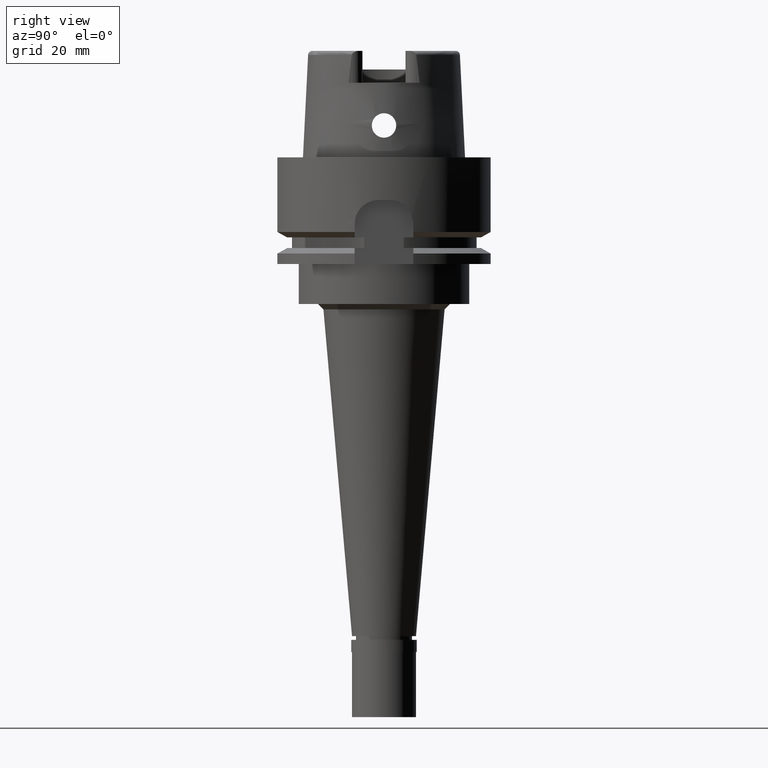
[diagram: clean part render]
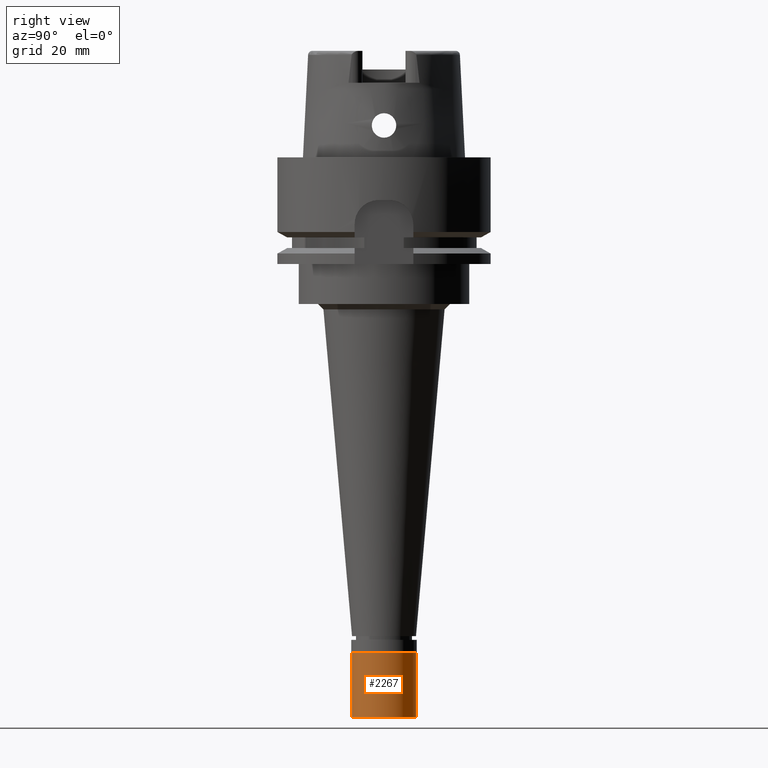
[diagram: same view with one face highlighted and labeled with its STEP entity id]
A machine part, right view. The second image highlights one B-rep face of the part: STEP entity #2267.
In plain terms, the highlighted cylindrical surface (edge-blend (fillet) strip) has radius 6 mm, axis along (0, 0, 1).
Its self-contained STEP definition (entity closure, byte-faithful):
#130 = VECTOR ( 'NONE', #911, 1000.000000000000000 ) ;
#154 = VECTOR ( 'NONE', #974, 1000.000000000000000 ) ;
#248 = DIRECTION ( 'NONE',  ( 0.0000000000000000000, -1.000000000000000000, 0.0000000000000000000 ) ) ;
#296 = CARTESIAN_POINT ( 'NONE',  ( 0.0000000000000000000, 0.0000000000000000000, -15.22500000000000142 ) ) ;
#660 = DIRECTION ( 'NONE',  ( 0.0000000000000000000, 1.000000000000000000, 0.0000000000000000000 ) ) ;
#686 = CARTESIAN_POINT ( 'NONE',  ( 0.0000000000000000000, -6.000000000000000000, -2.299999999999999822 ) ) ;
#855 = CARTESIAN_POINT ( 'NONE',  ( 0.0000000000000000000, 0.0000000000000000000, -14.50000000000000000 ) ) ;
#911 = DIRECTION ( 'NONE',  ( 0.0000000000000000000, 0.0000000000000000000, -1.000000000000000000 ) ) ;
#974 = DIRECTION ( 'NONE',  ( 0.0000000000000000000, 0.0000000000000000000, -1.000000000000000000 ) ) ;
#1033 = EDGE_CURVE ( 'NONE', #2236, #4622, #4205, .T. ) ;
#1035 = DIRECTION ( 'NONE',  ( 0.0000000000000000000, 0.0000000000000000000, 1.000000000000000000 ) ) ;
#1332 = AXIS2_PLACEMENT_3D ( 'NONE', #296, #1035, #1438 ) ;
#1438 = DIRECTION ( 'NONE',  ( 0.0000000000000000000, 1.000000000000000000, 0.0000000000000000000 ) ) ;
#1466 = DIRECTION ( 'NONE',  ( 0.0000000000000000000, 0.0000000000000000000, 1.000000000000000000 ) ) ;
#2051 = EDGE_LOOP ( 'NONE', ( #2857, #4283, #3932, #3995 ) ) ;
#2095 = AXIS2_PLACEMENT_3D ( 'NONE', #2643, #3049, #660 ) ;
#2155 = VERTEX_POINT ( 'NONE', #5007 ) ;
#2236 = VERTEX_POINT ( 'NONE', #686 ) ;
#2267 = ADVANCED_FACE ( 'NONE', ( #3919 ), #4738, .T. ) ;
#2292 = EDGE_CURVE ( 'NONE', #2155, #2236, #2509, .T. ) ;
#2509 = CIRCLE ( 'NONE', #2095, 6.000000000000000000 ) ;
#2512 = EDGE_CURVE ( 'NONE', #2155, #4646, #2988, .T. ) ;
#2643 = CARTESIAN_POINT ( 'NONE',  ( 0.0000000000000000000, 0.0000000000000000000, -2.299999999999999822 ) ) ;
#2857 = ORIENTED_EDGE ( 'NONE', *, *, #2292, .T. ) ;
#2988 = LINE ( 'NONE', #4602, #154 ) ;
#3049 = DIRECTION ( 'NONE',  ( 0.0000000000000000000, 0.0000000000000000000, -1.000000000000000000 ) ) ;
#3723 = CARTESIAN_POINT ( 'NONE',  ( 0.0000000000000000000, -6.000000000000000000, -2.299999999999999822 ) ) ;
#3728 = EDGE_CURVE ( 'NONE', #4622, #4646, #5077, .T. ) ;
#3919 = FACE_OUTER_BOUND ( 'NONE', #2051, .T. ) ;
#3932 = ORIENTED_EDGE ( 'NONE', *, *, #3728, .T. ) ;
#3995 = ORIENTED_EDGE ( 'NONE', *, *, #2512, .F. ) ;
#4205 = LINE ( 'NONE', #3723, #130 ) ;
#4281 = CARTESIAN_POINT ( 'NONE',  ( 0.0000000000000000000, 6.000000000000000000, -14.50000000000000000 ) ) ;
#4283 = ORIENTED_EDGE ( 'NONE', *, *, #1033, .T. ) ;
#4602 = CARTESIAN_POINT ( 'NONE',  ( 0.0000000000000000000, 6.000000000000000000, -2.299999999999999822 ) ) ;
#4622 = VERTEX_POINT ( 'NONE', #4672 ) ;
#4646 = VERTEX_POINT ( 'NONE', #4281 ) ;
#4672 = CARTESIAN_POINT ( 'NONE',  ( 0.0000000000000000000, -6.000000000000000000, -14.50000000000000000 ) ) ;
#4738 = CYLINDRICAL_SURFACE ( 'NONE', #1332, 6.000000000000000000 ) ;
#4898 = AXIS2_PLACEMENT_3D ( 'NONE', #855, #1466, #248 ) ;
#5007 = CARTESIAN_POINT ( 'NONE',  ( 0.0000000000000000000, 6.000000000000000000, -2.299999999999999822 ) ) ;
#5077 = CIRCLE ( 'NONE', #4898, 6.000000000000000000 ) ;